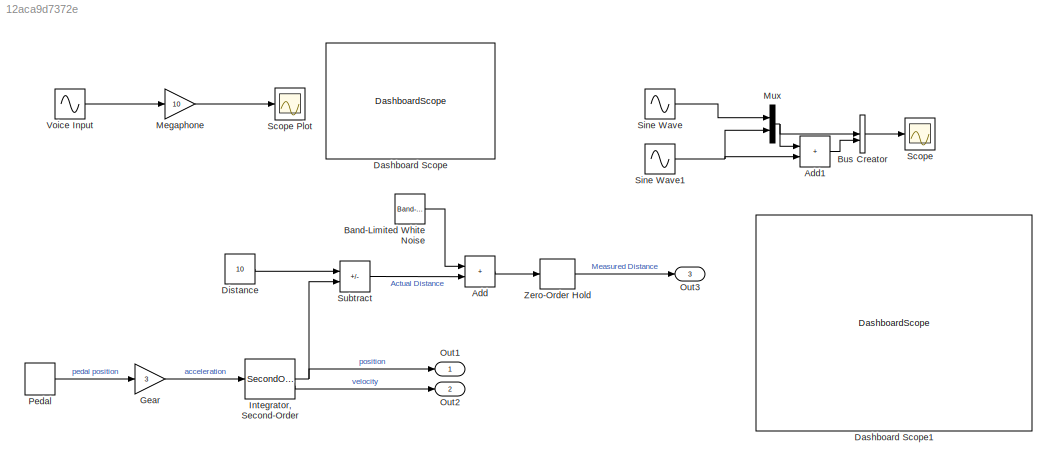
MODEL slx_12aca9d7372e
KIND model
CONFIG AbsTol = auto
CONFIG EnableMultiTasking = off
CONFIG FixedStep = auto
CONFIG MaxStep = 0.01
CONFIG MinStep = auto
CONFIG RelTol = 1e-3
CONFIG SampleTimeConstraint = Unconstrained
CONFIG SolverName = VariableStepAuto
CONFIG StartTime = 0.0
CONFIG StopTime = 20
BLOCK [Sum] Add
  IconShape = rectangular
BLOCK [Sum] Add1
  IconShape = rectangular
BLOCK [Reference] Band-Limited White Noise  REF=simulink/Sources/Band-Limited
White Noise
  SourceBlock = simulink/Sources/Band-Limited\nWhite Noise
  SourceType = Band-Limited White Noise.
BLOCK [BusCreator] Bus Creator
  DisplayOption = bar
  InheritFromInputs = on
  Inputs = 2
BLOCK [DashboardScope] Dashboard Scope
BLOCK [DashboardScope] Dashboard Scope1
BLOCK [Constant] Distance 
  Value = 10
BLOCK [Gain] Gear
  Gain = 3
BLOCK [SecondOrderIntegrator] Integrator, Second-Order
BLOCK [Gain] Megaphone
  Gain = 10
BLOCK [Mux] Mux
  DisplayOption = bar
  Inputs = 2
BLOCK [Outport] Out1
BLOCK [Outport] Out2
  Port = 2
BLOCK [Outport] Out3
  Port = 3
BLOCK [DiscretePulseGenerator] Pedal
  Period = 10
  PulseType = Time based
  PulseWidth = 5
BLOCK [Scope] Scope
  ActiveDisplayYMaximum = 4.9999981885420057
  ActiveDisplayYMinimum = -4.9999963796046618
  DataLoggingVariableName = ScopeData1
  Floating = off
  GraphicalSettings = {"Style":{"BackgroundColor":[0.12941176470588237,0.12941176470588237,0.12941176470588237],"AxesColor":[0.07058823529411765,0.07058823529411765,0.07058823529411765],"LabelsColor":[0.8509803921568627,0.8509803921568627,0.8509803921568627],"PreserveColors":false,"Visible":[true,true,true,true],"LineStyle":["-","-","-","-"],"LineWidth":[1.5,1.5,1.5,1.5],"BarWidth":[0.9,0.9,0.9,0.9],"LineColor":["auto"...<+2342ch>
  MultipleDisplayCache = [{"MaxYLimMag":4.9999981885420057,"MaxYLimReal":4.9999981885420057,"MinYLimMag":0,"MinYLimReal":-4.9999963796046618,"PlotAsMagnitudePhase":false,"ShowGrid":true,"ShowLegend":true,"Title":"%<SignalLabel>","YLabel":""}]
  NumInputPorts = 1
  ScopeFrameLocation = window
  ShowLegend = on
  WasSavedAsWebScope = on
  WindowPosition = [1.000000,-460.000000,1920.000000,1008.000000,]
BLOCK [Scope] Scope Plot
  Floating = off
  GraphicalSettings = {"GraphicalSettings":{"LegacySettings":true,"Style":{"Style":{"PlotType":"Auto"}}}}
  NumInputPorts = 1
  WasSavedAsWebScope = on
BLOCK [Sin] Sine Wave
  SampleTime = 0
BLOCK [Sin] Sine Wave1
  Amplitude = 2
  SampleTime = 0
BLOCK [Sum] Subtract
  IconShape = rectangular
  Inputs = +-
BLOCK [Sin] Voice Input
  SampleTime = 0
BLOCK [ZeroOrderHold] Zero-Order Hold
  SampleTime = -1
LINE Add1:1 -> Bus Creator:2
LINE Add:1 -> Zero-Order Hold:1
LINE Band-Limited White Noise:1 -> Add:1
LINE Bus Creator:1 -> Scope:1
LINE Distance :1 -> Subtract:1
LINE Gear:1 -> Integrator, Second-Order:1
NET Integrator, Second-Order:1 -> Out1:1, Subtract:2
LINE Integrator, Second-Order:2 -> Out2:1
LINE Megaphone:1 -> Scope Plot:1
NET Mux:1 -> Add1:1, Bus Creator:1
LINE Pedal:1 -> Gear:1
NET Sine Wave1:1 -> Add1:2, Mux:2
LINE Sine Wave:1 -> Mux:1
LINE Subtract:1 -> Add:2
LINE Voice Input:1 -> Megaphone:1
LINE Zero-Order Hold:1 -> Out3:1
note: NET lines group one-source signal fan-out (src -> all destinations, sorted); 1:1 wires keep LINE
